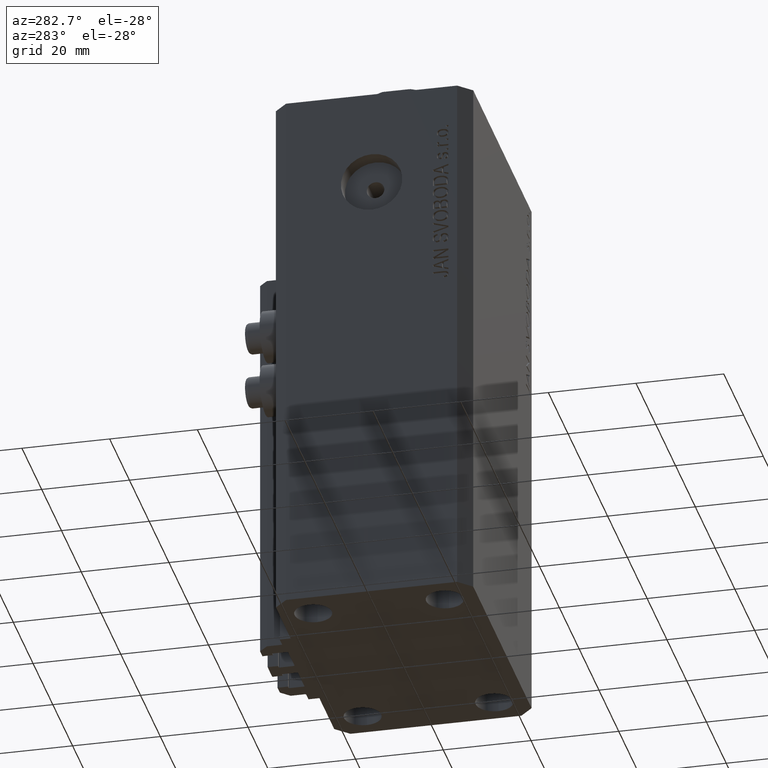
[diagram: clean part render]
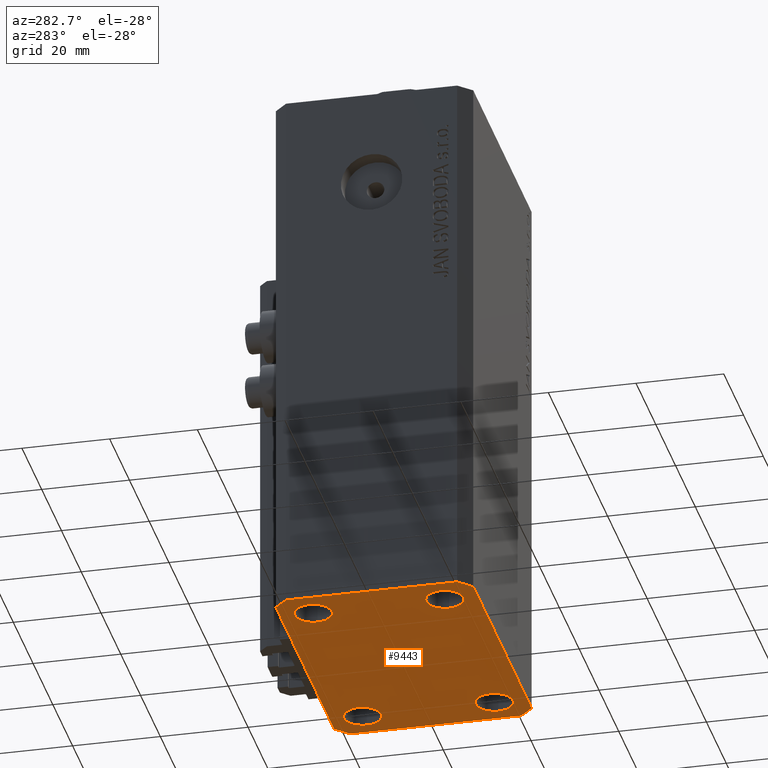
[diagram: same view with one face highlighted and labeled with its STEP entity id]
A machine part, auxiliary view. The second image highlights one B-rep face of the part: STEP entity #9443.
In plain terms, the highlighted planar face has unit normal (0, 0, 1).
Its self-contained STEP definition (entity closure, byte-faithful):
#32 = CARTESIAN_POINT ( 'NONE',  ( -25.00000000000000000, 14.99999999999999645, -125.0000000000000000 ) ) ;
#549 = CARTESIAN_POINT ( 'NONE',  ( 32.49999999999651124, -19.49999999999949196, -125.0000000000000000 ) ) ;
#585 = VERTEX_POINT ( 'NONE', #32163 ) ;
#748 = AXIS2_PLACEMENT_3D ( 'NONE', #11002, #4083, #32289 ) ;
#886 = LINE ( 'NONE', #1833, #18396 ) ;
#1180 = DIRECTION ( 'NONE',  ( 1.000000000000000000, 0.000000000000000000, 0.000000000000000000 ) ) ;
#1371 = DIRECTION ( 'NONE',  ( 1.000000000000000000, 0.000000000000000000, 0.000000000000000000 ) ) ;
#1479 = CARTESIAN_POINT ( 'NONE',  ( 29.24999999995729283, 14.99999999999999289, -125.0000000000000000 ) ) ;
#1667 = ORIENTED_EDGE ( 'NONE', *, *, #4565, .F. ) ;
#1719 = VECTOR ( 'NONE', #14710, 1000.000000000000000 ) ;
#1833 = CARTESIAN_POINT ( 'NONE',  ( -29.49999999999650413, -22.49999999999949907, -125.0000000000000000 ) ) ;
#1947 = VERTEX_POINT ( 'NONE', #20125 ) ;
#2486 = VERTEX_POINT ( 'NONE', #549 ) ;
#3421 = CARTESIAN_POINT ( 'NONE',  ( 29.49999999999707967, 22.49999999999952038, -125.0000000000000000 ) ) ;
#3824 = ORIENTED_EDGE ( 'NONE', *, *, #46753, .F. ) ;
#3898 = DIRECTION ( 'NONE',  ( -1.000000000000000000, -3.528251137580330676E-16, 0.000000000000000000 ) ) ;
#4083 = DIRECTION ( 'NONE',  ( -0.000000000000000000, -0.000000000000000000, -1.000000000000000000 ) ) ;
#4565 = EDGE_CURVE ( 'NONE', #2486, #14713, #9974, .T. ) ;
#4956 = DIRECTION ( 'NONE',  ( -0.000000000000000000, -0.000000000000000000, -1.000000000000000000 ) ) ;
#5033 = EDGE_CURVE ( 'NONE', #37933, #18658, #28666, .T. ) ;
#5144 = CIRCLE ( 'NONE', #46352, 4.250000000021375790 ) ;
#5389 = EDGE_LOOP ( 'NONE', ( #46539, #26338 ) ) ;
#5838 = CARTESIAN_POINT ( 'NONE',  ( 24.99999999999999289, -15.00000000000000355, -125.0000000000000000 ) ) ;
#5889 = EDGE_CURVE ( 'NONE', #1947, #44838, #16737, .T. ) ;
#6412 = ORIENTED_EDGE ( 'NONE', *, *, #5033, .F. ) ;
#6542 = CARTESIAN_POINT ( 'NONE',  ( 29.49999999999707967, 22.49999999999952038, -125.0000000000000000 ) ) ;
#6919 = DIRECTION ( 'NONE',  ( -0.7071067811865344721, 0.7071067811865606734, 0.000000000000000000 ) ) ;
#7265 = CARTESIAN_POINT ( 'NONE',  ( -29.25000000002137668, 14.99999999999999645, -125.0000000000000000 ) ) ;
#7422 = DIRECTION ( 'NONE',  ( 1.000000000000000000, 0.000000000000000000, 0.000000000000000000 ) ) ;
#7828 = CIRCLE ( 'NONE', #39855, 4.249999999957291053 ) ;
#8041 = ORIENTED_EDGE ( 'NONE', *, *, #42932, .F. ) ;
#8153 = CARTESIAN_POINT ( 'NONE',  ( 29.24999999997631051, -15.00000000000000355, -125.0000000000000000 ) ) ;
#8301 = AXIS2_PLACEMENT_3D ( 'NONE', #38190, #8336, #1180 ) ;
#8336 = DIRECTION ( 'NONE',  ( -0.000000000000000000, -0.000000000000000000, -1.000000000000000000 ) ) ;
#9443 = ADVANCED_FACE ( 'NONE', ( #42723, #35341, #39854, #43419, #38917 ), #10478, .F. ) ;
#9516 = ORIENTED_EDGE ( 'NONE', *, *, #40599, .F. ) ;
#9974 = LINE ( 'NONE', #35051, #11295 ) ;
#10256 = DIRECTION ( 'NONE',  ( 1.000000000000000000, 0.000000000000000000, -0.000000000000000000 ) ) ;
#10266 = EDGE_CURVE ( 'NONE', #14713, #28583, #39162, .T. ) ;
#10478 = PLANE ( 'NONE',  #20624 ) ;
#10659 = AXIS2_PLACEMENT_3D ( 'NONE', #38148, #4956, #1371 ) ;
#11002 = CARTESIAN_POINT ( 'NONE',  ( -24.99999999999999289, -15.00000000000000355, -125.0000000000000000 ) ) ;
#11295 = VECTOR ( 'NONE', #38866, 1000.000000000000000 ) ;
#12130 = ORIENTED_EDGE ( 'NONE', *, *, #44939, .F. ) ;
#14594 = CIRCLE ( 'NONE', #16132, 4.249999999976314058 ) ;
#14710 = DIRECTION ( 'NONE',  ( 0.000000000000000000, -1.000000000000000000, 0.000000000000000000 ) ) ;
#14713 = VERTEX_POINT ( 'NONE', #28804 ) ;
#14988 = DIRECTION ( 'NONE',  ( 0.7071067811865483499, 0.7071067811865466846, 0.000000000000000000 ) ) ;
#15145 = VERTEX_POINT ( 'NONE', #1479 ) ;
#15260 = CIRCLE ( 'NONE', #748, 4.250000000040370374 ) ;
#15278 = CIRCLE ( 'NONE', #10659, 4.250000000040370374 ) ;
#15379 = EDGE_LOOP ( 'NONE', ( #9516, #26127 ) ) ;
#16132 = AXIS2_PLACEMENT_3D ( 'NONE', #28157, #36031, #20526 ) ;
#16737 = LINE ( 'NONE', #17209, #20516 ) ;
#16762 = EDGE_LOOP ( 'NONE', ( #3824, #12130 ) ) ;
#16768 = ORIENTED_EDGE ( 'NONE', *, *, #28694, .F. ) ;
#16928 = VERTEX_POINT ( 'NONE', #17213 ) ;
#17022 = CARTESIAN_POINT ( 'NONE',  ( 29.49999999999650413, -22.49999999999949196, -125.0000000000000000 ) ) ;
#17209 = CARTESIAN_POINT ( 'NONE',  ( -29.49999999999650413, 22.49999999999949907, -125.0000000000000000 ) ) ;
#17213 = CARTESIAN_POINT ( 'NONE',  ( -20.74999999995962341, -15.00000000000000355, -125.0000000000000000 ) ) ;
#17559 = VECTOR ( 'NONE', #6919, 1000.000000000000000 ) ;
#18310 = EDGE_CURVE ( 'NONE', #44838, #37933, #29036, .T. ) ;
#18360 = ORIENTED_EDGE ( 'NONE', *, *, #27093, .F. ) ;
#18396 = VECTOR ( 'NONE', #19033, 1000.000000000000000 ) ;
#18658 = VERTEX_POINT ( 'NONE', #22493 ) ;
#19033 = DIRECTION ( 'NONE',  ( 1.000000000000000000, 1.176083712526788232E-16, 0.000000000000000000 ) ) ;
#19448 = ORIENTED_EDGE ( 'NONE', *, *, #10266, .F. ) ;
#19791 = CARTESIAN_POINT ( 'NONE',  ( -32.49999999999650413, -19.49999999999949907, -125.0000000000000000 ) ) ;
#20111 = DIRECTION ( 'NONE',  ( 1.000000000000000000, 0.000000000000000000, 0.000000000000000000 ) ) ;
#20113 = DIRECTION ( 'NONE',  ( 1.000000000000000000, 0.000000000000000000, 0.000000000000000000 ) ) ;
#20125 = CARTESIAN_POINT ( 'NONE',  ( -29.49999999999650413, 22.49999999999949907, -125.0000000000000000 ) ) ;
#20448 = EDGE_CURVE ( 'NONE', #15145, #585, #7828, .T. ) ;
#20462 = VERTEX_POINT ( 'NONE', #8153 ) ;
#20516 = VECTOR ( 'NONE', #35807, 1000.000000000000114 ) ;
#20526 = DIRECTION ( 'NONE',  ( 1.000000000000000000, 0.000000000000000000, 0.000000000000000000 ) ) ;
#20624 = AXIS2_PLACEMENT_3D ( 'NONE', #36278, #39609, #10256 ) ;
#20827 = EDGE_LOOP ( 'NONE', ( #8041, #19448, #1667, #40080, #18360, #6412, #34208, #42722 ) ) ;
#22493 = CARTESIAN_POINT ( 'NONE',  ( -29.49999999999650413, -22.49999999999949907, -125.0000000000000000 ) ) ;
#22767 = VERTEX_POINT ( 'NONE', #37443 ) ;
#22785 = CIRCLE ( 'NONE', #8301, 4.249999999957291053 ) ;
#22926 = VECTOR ( 'NONE', #3898, 1000.000000000000000 ) ;
#23432 = VERTEX_POINT ( 'NONE', #7265 ) ;
#24636 = CARTESIAN_POINT ( 'NONE',  ( -25.00000000000000000, 14.99999999999999645, -125.0000000000000000 ) ) ;
#25249 = EDGE_CURVE ( 'NONE', #39874, #16928, #15260, .T. ) ;
#25321 = AXIS2_PLACEMENT_3D ( 'NONE', #32, #47042, #7422 ) ;
#25721 = CARTESIAN_POINT ( 'NONE',  ( 29.49999999999650413, -22.49999999999949196, -125.0000000000000000 ) ) ;
#26127 = ORIENTED_EDGE ( 'NONE', *, *, #25249, .F. ) ;
#26338 = ORIENTED_EDGE ( 'NONE', *, *, #38612, .F. ) ;
#26686 = VECTOR ( 'NONE', #14988, 1000.000000000000000 ) ;
#27093 = EDGE_CURVE ( 'NONE', #18658, #45774, #886, .T. ) ;
#27508 = DIRECTION ( 'NONE',  ( -0.000000000000000000, -0.000000000000000000, -1.000000000000000000 ) ) ;
#28157 = CARTESIAN_POINT ( 'NONE',  ( 24.99999999999999289, -15.00000000000000355, -125.0000000000000000 ) ) ;
#28583 = VERTEX_POINT ( 'NONE', #3421 ) ;
#28666 = LINE ( 'NONE', #43198, #33413 ) ;
#28694 = EDGE_CURVE ( 'NONE', #22767, #23432, #5144, .T. ) ;
#28728 = ORIENTED_EDGE ( 'NONE', *, *, #45835, .F. ) ;
#28804 = CARTESIAN_POINT ( 'NONE',  ( 32.49999999999702993, 19.49999999999945999, -125.0000000000000000 ) ) ;
#29036 = LINE ( 'NONE', #47141, #1719 ) ;
#32163 = CARTESIAN_POINT ( 'NONE',  ( 20.75000000004271072, 14.99999999999999289, -125.0000000000000000 ) ) ;
#32289 = DIRECTION ( 'NONE',  ( 1.000000000000000000, 0.000000000000000000, 0.000000000000000000 ) ) ;
#32506 = CARTESIAN_POINT ( 'NONE',  ( 20.75000000002367884, -15.00000000000000355, -125.0000000000000000 ) ) ;
#32960 = AXIS2_PLACEMENT_3D ( 'NONE', #5838, #42138, #45703 ) ;
#33413 = VECTOR ( 'NONE', #43433, 1000.000000000000114 ) ;
#34208 = ORIENTED_EDGE ( 'NONE', *, *, #18310, .F. ) ;
#34489 = CIRCLE ( 'NONE', #32960, 4.249999999976314058 ) ;
#34654 = VERTEX_POINT ( 'NONE', #32506 ) ;
#34661 = CARTESIAN_POINT ( 'NONE',  ( 25.00000000000000000, 14.99999999999999289, -125.0000000000000000 ) ) ;
#35051 = CARTESIAN_POINT ( 'NONE',  ( 32.49999999999651124, -19.49999999999949196, -125.0000000000000000 ) ) ;
#35341 = FACE_BOUND ( 'NONE', #16762, .T. ) ;
#35501 = CARTESIAN_POINT ( 'NONE',  ( -29.25000000004036593, -15.00000000000000355, -125.0000000000000000 ) ) ;
#35568 = CARTESIAN_POINT ( 'NONE',  ( 32.49999999999702993, 19.49999999999945999, -125.0000000000000000 ) ) ;
#35807 = DIRECTION ( 'NONE',  ( -0.7071067811865474617, -0.7071067811865474617, 0.000000000000000000 ) ) ;
#35908 = LINE ( 'NONE', #6542, #22926 ) ;
#36031 = DIRECTION ( 'NONE',  ( -0.000000000000000000, -0.000000000000000000, -1.000000000000000000 ) ) ;
#36278 = CARTESIAN_POINT ( 'NONE',  ( 0.000000000000000000, 0.000000000000000000, -125.0000000000000000 ) ) ;
#37443 = CARTESIAN_POINT ( 'NONE',  ( -20.74999999997862687, 14.99999999999999645, -125.0000000000000000 ) ) ;
#37933 = VERTEX_POINT ( 'NONE', #19791 ) ;
#38135 = EDGE_CURVE ( 'NONE', #45774, #2486, #43853, .T. ) ;
#38148 = CARTESIAN_POINT ( 'NONE',  ( -24.99999999999999289, -15.00000000000000355, -125.0000000000000000 ) ) ;
#38190 = CARTESIAN_POINT ( 'NONE',  ( 25.00000000000000000, 14.99999999999999289, -125.0000000000000000 ) ) ;
#38196 = CARTESIAN_POINT ( 'NONE',  ( -32.49999999999650413, 19.49999999999949907, -125.0000000000000000 ) ) ;
#38612 = EDGE_CURVE ( 'NONE', #585, #15145, #22785, .T. ) ;
#38866 = DIRECTION ( 'NONE',  ( 1.334402673828349134E-14, 1.000000000000000000, 0.000000000000000000 ) ) ;
#38917 = FACE_OUTER_BOUND ( 'NONE', #20827, .T. ) ;
#39162 = LINE ( 'NONE', #35568, #17559 ) ;
#39609 = DIRECTION ( 'NONE',  ( 0.000000000000000000, 0.000000000000000000, 1.000000000000000000 ) ) ;
#39854 = FACE_BOUND ( 'NONE', #5389, .T. ) ;
#39855 = AXIS2_PLACEMENT_3D ( 'NONE', #34661, #45392, #20111 ) ;
#39874 = VERTEX_POINT ( 'NONE', #35501 ) ;
#40080 = ORIENTED_EDGE ( 'NONE', *, *, #38135, .F. ) ;
#40553 = CIRCLE ( 'NONE', #25321, 4.250000000021375790 ) ;
#40599 = EDGE_CURVE ( 'NONE', #16928, #39874, #15278, .T. ) ;
#42138 = DIRECTION ( 'NONE',  ( -0.000000000000000000, -0.000000000000000000, -1.000000000000000000 ) ) ;
#42722 = ORIENTED_EDGE ( 'NONE', *, *, #5889, .F. ) ;
#42723 = FACE_BOUND ( 'NONE', #15379, .T. ) ;
#42932 = EDGE_CURVE ( 'NONE', #28583, #1947, #35908, .T. ) ;
#43198 = CARTESIAN_POINT ( 'NONE',  ( -32.49999999999650413, -19.49999999999949907, -125.0000000000000000 ) ) ;
#43419 = FACE_BOUND ( 'NONE', #46198, .T. ) ;
#43433 = DIRECTION ( 'NONE',  ( 0.7071067811865474617, -0.7071067811865474617, 0.000000000000000000 ) ) ;
#43853 = LINE ( 'NONE', #25721, #26686 ) ;
#44838 = VERTEX_POINT ( 'NONE', #38196 ) ;
#44939 = EDGE_CURVE ( 'NONE', #34654, #20462, #14594, .T. ) ;
#45392 = DIRECTION ( 'NONE',  ( -0.000000000000000000, -0.000000000000000000, -1.000000000000000000 ) ) ;
#45703 = DIRECTION ( 'NONE',  ( 1.000000000000000000, 0.000000000000000000, 0.000000000000000000 ) ) ;
#45774 = VERTEX_POINT ( 'NONE', #17022 ) ;
#45835 = EDGE_CURVE ( 'NONE', #23432, #22767, #40553, .T. ) ;
#46198 = EDGE_LOOP ( 'NONE', ( #16768, #28728 ) ) ;
#46352 = AXIS2_PLACEMENT_3D ( 'NONE', #24636, #27508, #20113 ) ;
#46539 = ORIENTED_EDGE ( 'NONE', *, *, #20448, .F. ) ;
#46753 = EDGE_CURVE ( 'NONE', #20462, #34654, #34489, .T. ) ;
#47042 = DIRECTION ( 'NONE',  ( -0.000000000000000000, -0.000000000000000000, -1.000000000000000000 ) ) ;
#47141 = CARTESIAN_POINT ( 'NONE',  ( -32.49999999999650413, 19.49999999999949907, -125.0000000000000000 ) ) ;